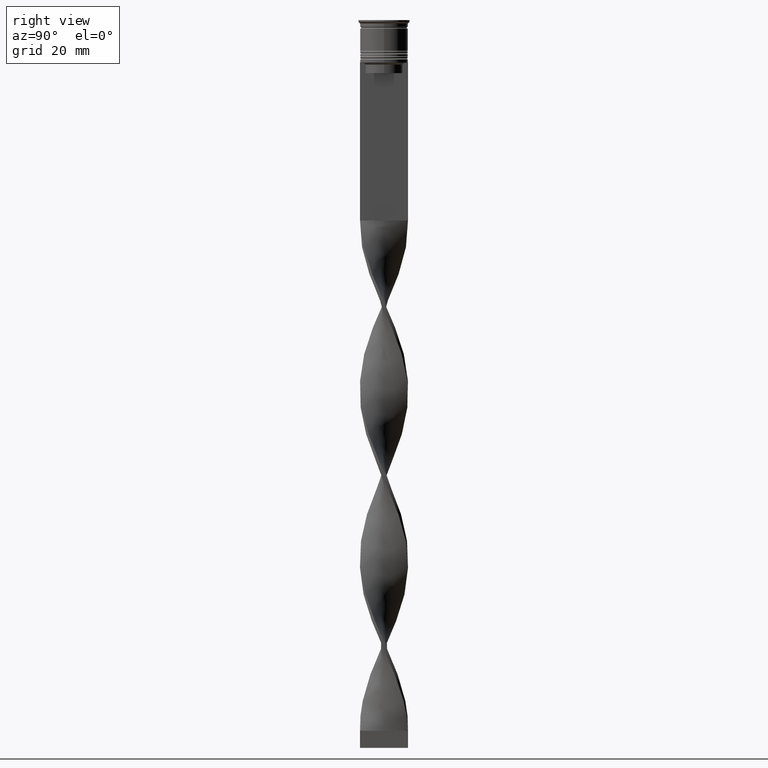
[diagram: clean part render]
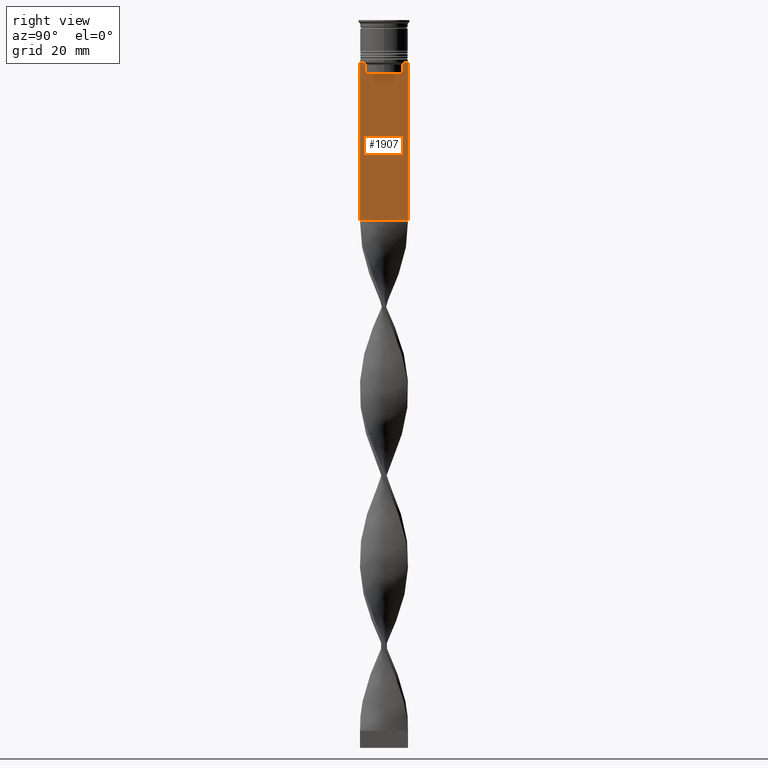
[diagram: same view with one face highlighted and labeled with its STEP entity id]
A machine part, right view. The second image highlights one B-rep face of the part: STEP entity #1907.
In plain terms, the highlighted planar face has unit normal (-1, 0, 0).
Its self-contained STEP definition (entity closure, byte-faithful):
#6 = EDGE_CURVE ( 'NONE', #724, #3765, #295, .T. ) ;
#12 = CARTESIAN_POINT ( 'NONE',  ( 0.5000000000000000000, 5.400000000000003908, -15.50000000000000000 ) ) ;
#25 = CARTESIAN_POINT ( 'NONE',  ( 0.5000000000000000000, 5.376802023508029826, 0.000000000000000000 ) ) ;
#45 = DIRECTION ( 'NONE',  ( 0.000000000000000000, 0.000000000000000000, -1.000000000000000000 ) ) ;
#46 = EDGE_CURVE ( 'NONE', #1186, #3499, #3733, .T. ) ;
#93 = EDGE_CURVE ( 'NONE', #3765, #3350, #1386, .T. ) ;
#99 = CARTESIAN_POINT ( 'NONE',  ( 0.5000000000000000000, 5.376802023508029826, -13.00000000000000178 ) ) ;
#140 = DIRECTION ( 'NONE',  ( 0.000000000000000000, -1.000000000000000000, 0.000000000000000000 ) ) ;
#145 = VECTOR ( 'NONE', #45, 1000.000000000000000 ) ;
#182 = ORIENTED_EDGE ( 'NONE', *, *, #1680, .F. ) ;
#188 = ORIENTED_EDGE ( 'NONE', *, *, #93, .T. ) ;
#295 = LINE ( 'NONE', #3304, #3005 ) ;
#339 = ORIENTED_EDGE ( 'NONE', *, *, #538, .T. ) ;
#356 = LINE ( 'NONE', #2755, #3082 ) ;
#452 = VECTOR ( 'NONE', #799, 1000.000000000000000 ) ;
#477 = FACE_OUTER_BOUND ( 'NONE', #3233, .T. ) ;
#485 = VERTEX_POINT ( 'NONE', #3088 ) ;
#516 = VECTOR ( 'NONE', #853, 1000.000000000000000 ) ;
#528 = VERTEX_POINT ( 'NONE', #1610 ) ;
#538 = EDGE_CURVE ( 'NONE', #485, #2656, #356, .T. ) ;
#550 = LINE ( 'NONE', #3298, #1215 ) ;
#587 = DIRECTION ( 'NONE',  ( -1.000000000000000000, 0.000000000000000000, 0.000000000000000000 ) ) ;
#646 = CARTESIAN_POINT ( 'NONE',  ( 0.5000000000000000000, -5.376802023508029826, -13.00000000000000178 ) ) ;
#654 = VECTOR ( 'NONE', #712, 1000.000000000000000 ) ;
#712 = DIRECTION ( 'NONE',  ( 0.000000000000000000, -1.000000000000000000, 0.000000000000000000 ) ) ;
#724 = VERTEX_POINT ( 'NONE', #2001 ) ;
#738 = ORIENTED_EDGE ( 'NONE', *, *, #2363, .T. ) ;
#799 = DIRECTION ( 'NONE',  ( 0.000000000000000000, -1.000000000000000000, 0.000000000000000000 ) ) ;
#853 = DIRECTION ( 'NONE',  ( 0.000000000000000000, 1.000000000000000000, 0.000000000000000000 ) ) ;
#933 = ORIENTED_EDGE ( 'NONE', *, *, #3638, .T. ) ;
#937 = CARTESIAN_POINT ( 'NONE',  ( 0.5000000000000000000, -5.878775382679629402, -12.50000000000000000 ) ) ;
#1089 = LINE ( 'NONE', #2290, #452 ) ;
#1096 = VERTEX_POINT ( 'NONE', #2118 ) ;
#1171 = CARTESIAN_POINT ( 'NONE',  ( 0.5000000000000000000, 5.376802023508029826, -15.50000000000000000 ) ) ;
#1186 = VERTEX_POINT ( 'NONE', #2548 ) ;
#1194 = ORIENTED_EDGE ( 'NONE', *, *, #46, .T. ) ;
#1215 = VECTOR ( 'NONE', #2963, 1000.000000000000000 ) ;
#1228 = VERTEX_POINT ( 'NONE', #3465 ) ;
#1323 = AXIS2_PLACEMENT_3D ( 'NONE', #2102, #587, #1475 ) ;
#1343 = LINE ( 'NONE', #2540, #3194 ) ;
#1386 = B_SPLINE_CURVE_WITH_KNOTS ( 'NONE', 3,
 ( #646, #2730, #1855, #2749 ),
 .UNSPECIFIED., .F., .F.,
 ( 4, 4 ),
 ( 0.02539176325380714666, 0.02610162431828674801 ),
 .UNSPECIFIED. ) ;
#1407 = CARTESIAN_POINT ( 'NONE',  ( 0.5000000000000000000, -5.376802023508029826, -13.00000000000000178 ) ) ;
#1432 = CARTESIAN_POINT ( 'NONE',  ( 0.5000000000000000000, -6.999999999999997335, -12.50000000000000000 ) ) ;
#1436 = VERTEX_POINT ( 'NONE', #2669 ) ;
#1451 = ORIENTED_EDGE ( 'NONE', *, *, #3382, .T. ) ;
#1475 = DIRECTION ( 'NONE',  ( 0.000000000000000000, 0.000000000000000000, 1.000000000000000000 ) ) ;
#1499 = CARTESIAN_POINT ( 'NONE',  ( 0.5000000000000000000, 5.711478846560141598, -12.66669470477064685 ) ) ;
#1575 = ORIENTED_EDGE ( 'NONE', *, *, #3065, .T. ) ;
#1610 = CARTESIAN_POINT ( 'NONE',  ( 0.5000000000000000000, -6.881860213634102053, -12.50000000000000000 ) ) ;
#1665 = VECTOR ( 'NONE', #140, 1000.000000000000000 ) ;
#1680 = EDGE_CURVE ( 'NONE', #1228, #1436, #1343, .T. ) ;
#1855 = CARTESIAN_POINT ( 'NONE',  ( 0.5000000000000000000, -5.711478856069293286, -12.66669469529570335 ) ) ;
#1907 = ADVANCED_FACE ( 'NONE', ( #477 ), #2663, .F. ) ;
#1951 = DIRECTION ( 'NONE',  ( 0.000000000000000000, 0.000000000000000000, -1.000000000000000000 ) ) ;
#2001 = CARTESIAN_POINT ( 'NONE',  ( 0.5000000000000000000, -5.376802023508029826, -15.50000000000000000 ) ) ;
#2102 = CARTESIAN_POINT ( 'NONE',  ( 0.5000000000000000000, -6.999999999999997335, 1.535668847618198329 ) ) ;
#2118 = CARTESIAN_POINT ( 'NONE',  ( 0.5000000000000000000, 6.881860213634102053, -12.50000000000000000 ) ) ;
#2128 = DIRECTION ( 'NONE',  ( -0.000000000000000000, -0.000000000000000000, 1.000000000000000000 ) ) ;
#2246 = LINE ( 'NONE', #1432, #654 ) ;
#2290 = CARTESIAN_POINT ( 'NONE',  ( 0.5000000000000000000, -6.999999999999997335, -12.50000000000000000 ) ) ;
#2308 = EDGE_CURVE ( 'NONE', #1096, #1186, #550, .T. ) ;
#2333 = ORIENTED_EDGE ( 'NONE', *, *, #2308, .T. ) ;
#2355 = LINE ( 'NONE', #3611, #516 ) ;
#2363 = EDGE_CURVE ( 'NONE', #3328, #724, #2644, .T. ) ;
#2452 = CARTESIAN_POINT ( 'NONE',  ( 0.5000000000000000000, 5.376802023508029826, -13.00000000000000178 ) ) ;
#2540 = CARTESIAN_POINT ( 'NONE',  ( 0.5000000000000000000, 7.000000000000002665, 1.535668847618198329 ) ) ;
#2548 = CARTESIAN_POINT ( 'NONE',  ( 0.5000000000000000000, 5.878775382679629402, -12.50000000000000000 ) ) ;
#2644 = LINE ( 'NONE', #12, #3154 ) ;
#2656 = VERTEX_POINT ( 'NONE', #2670 ) ;
#2663 = PLANE ( 'NONE',  #1323 ) ;
#2669 = CARTESIAN_POINT ( 'NONE',  ( 0.5000000000000000000, 7.000000000000002665, -58.50000000000000000 ) ) ;
#2670 = CARTESIAN_POINT ( 'NONE',  ( 0.5000000000000000000, -6.999999999999997335, -58.50000000000000000 ) ) ;
#2690 = CARTESIAN_POINT ( 'NONE',  ( 0.5000000000000000000, 5.544156989057553275, -12.83336397825725861 ) ) ;
#2722 = LINE ( 'NONE', #25, #145 ) ;
#2730 = CARTESIAN_POINT ( 'NONE',  ( 0.5000000000000000000, -5.544156999454441959, -12.83336396790503642 ) ) ;
#2749 = CARTESIAN_POINT ( 'NONE',  ( 0.5000000000000000000, -5.878775382679629402, -12.50000000000000000 ) ) ;
#2755 = CARTESIAN_POINT ( 'NONE',  ( 0.5000000000000000000, -6.999999999999997335, 1.535668847618198329 ) ) ;
#2759 = EDGE_CURVE ( 'NONE', #3499, #3328, #2722, .T. ) ;
#2765 = ORIENTED_EDGE ( 'NONE', *, *, #6, .T. ) ;
#2937 = LINE ( 'NONE', #3803, #1665 ) ;
#2941 = DIRECTION ( 'NONE',  ( 0.000000000000000000, -1.000000000000000000, 0.000000000000000000 ) ) ;
#2963 = DIRECTION ( 'NONE',  ( 0.000000000000000000, -1.000000000000000000, 0.000000000000000000 ) ) ;
#2987 = CARTESIAN_POINT ( 'NONE',  ( 0.5000000000000000000, 5.878775382679629402, -12.50000000000000000 ) ) ;
#3005 = VECTOR ( 'NONE', #2128, 1000.000000000000000 ) ;
#3020 = ORIENTED_EDGE ( 'NONE', *, *, #2759, .T. ) ;
#3065 = EDGE_CURVE ( 'NONE', #1228, #1096, #2246, .T. ) ;
#3082 = VECTOR ( 'NONE', #3126, 1000.000000000000000 ) ;
#3088 = CARTESIAN_POINT ( 'NONE',  ( 0.5000000000000000000, -6.999999999999997335, -12.50000000000000000 ) ) ;
#3095 = EDGE_CURVE ( 'NONE', #528, #485, #2937, .T. ) ;
#3126 = DIRECTION ( 'NONE',  ( 0.000000000000000000, 0.000000000000000000, -1.000000000000000000 ) ) ;
#3154 = VECTOR ( 'NONE', #2941, 1000.000000000000000 ) ;
#3192 = ORIENTED_EDGE ( 'NONE', *, *, #3095, .T. ) ;
#3194 = VECTOR ( 'NONE', #1951, 1000.000000000000000 ) ;
#3233 = EDGE_LOOP ( 'NONE', ( #2333, #1194, #3020, #738, #2765, #188, #933, #3192, #339, #1451, #182, #1575 ) ) ;
#3298 = CARTESIAN_POINT ( 'NONE',  ( 0.5000000000000000000, -6.999999999999997335, -12.50000000000000000 ) ) ;
#3304 = CARTESIAN_POINT ( 'NONE',  ( 0.5000000000000000000, -5.376802023508029826, 0.000000000000000000 ) ) ;
#3328 = VERTEX_POINT ( 'NONE', #1171 ) ;
#3350 = VERTEX_POINT ( 'NONE', #937 ) ;
#3382 = EDGE_CURVE ( 'NONE', #2656, #1436, #2355, .T. ) ;
#3465 = CARTESIAN_POINT ( 'NONE',  ( 0.5000000000000000000, 7.000000000000002665, -12.50000000000000000 ) ) ;
#3499 = VERTEX_POINT ( 'NONE', #99 ) ;
#3611 = CARTESIAN_POINT ( 'NONE',  ( 0.5000000000000000000, -6.999999999999997335, -58.50000000000000000 ) ) ;
#3638 = EDGE_CURVE ( 'NONE', #3350, #528, #1089, .T. ) ;
#3733 = B_SPLINE_CURVE_WITH_KNOTS ( 'NONE', 3,
 ( #2987, #1499, #2690, #2452 ),
 .UNSPECIFIED., .F., .F.,
 ( 4, 4 ),
 ( 0.01003009312103698807, 0.01073859663834952557 ),
 .UNSPECIFIED. ) ;
#3765 = VERTEX_POINT ( 'NONE', #1407 ) ;
#3803 = CARTESIAN_POINT ( 'NONE',  ( 0.5000000000000000000, -6.999999999999997335, -12.50000000000000000 ) ) ;